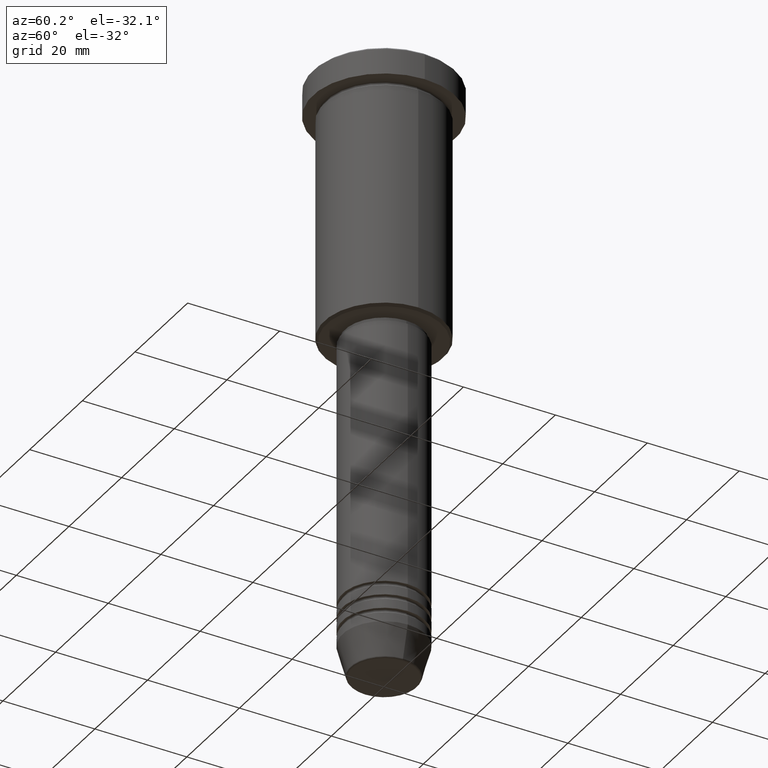
[diagram: clean part render]
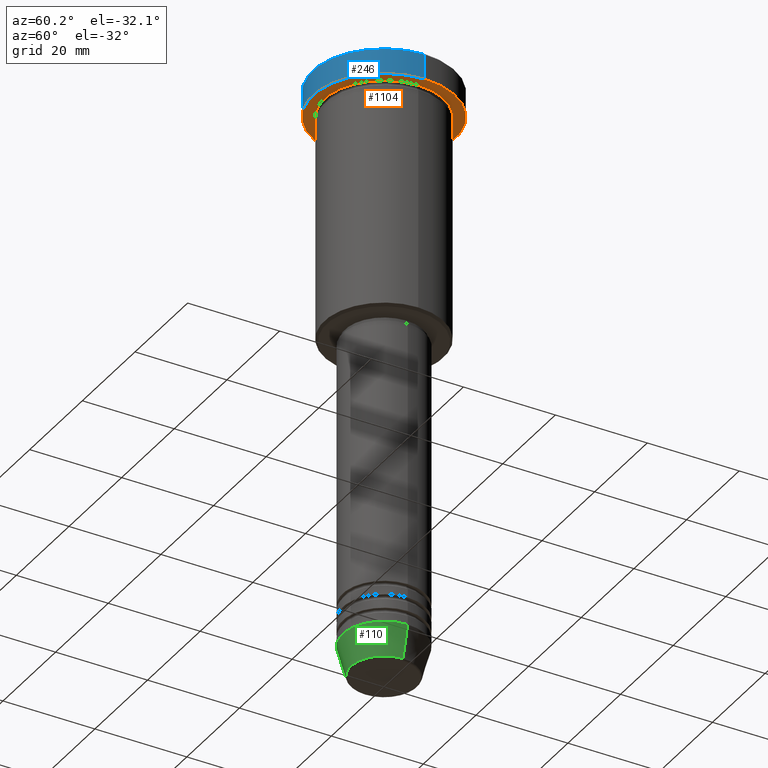
[diagram: same view with three faces highlighted in distinct colors, each labeled with its STEP entity id]
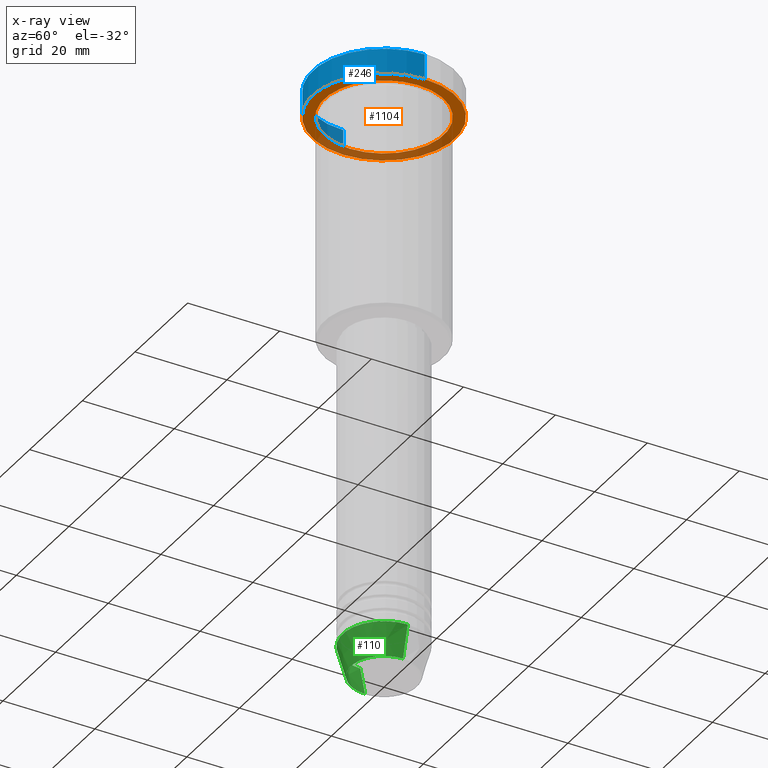
[diagram: x-ray of the same camera — body ghosted, the three highlighted faces saturated]
A machine part, auxiliary view with three faces highlighted in distinct colors.
The next image is the same camera in x-ray (body ghosted, the three faces saturated) — at least one of them is partly hidden behind the body in this view.
Their STEP definitions:

[orange] entity #1104 — the highlighted planar face has unit normal (0, 0, -1).
#147 = VERTEX_POINT ( 'NONE', #797 ) ;
#161 = EDGE_CURVE ( 'NONE', #652, #615, #906, .T. ) ;
#181 = EDGE_CURVE ( 'NONE', #1025, #147, #1079, .T. ) ;
#233 = AXIS2_PLACEMENT_3D ( 'NONE', #711, #237, #357 ) ;
#237 = DIRECTION ( 'NONE',  ( 0.000000000000000000, 0.000000000000000000, -1.000000000000000000 ) ) ;
#281 = ORIENTED_EDGE ( 'NONE', *, *, #315, .F. ) ;
#315 = EDGE_CURVE ( 'NONE', #147, #1025, #883, .T. ) ;
#326 = DIRECTION ( 'NONE',  ( 1.000000000000000000, 0.000000000000000000, 0.000000000000000000 ) ) ;
#328 = ORIENTED_EDGE ( 'NONE', *, *, #581, .T. ) ;
#340 = DIRECTION ( 'NONE',  ( -0.000000000000000000, -0.000000000000000000, 1.000000000000000000 ) ) ;
#345 = AXIS2_PLACEMENT_3D ( 'NONE', #1059, #539, #898 ) ;
#348 = CARTESIAN_POINT ( 'NONE',  ( 15.50000000000000000, 0.000000000000000000, -5.999999999999995559 ) ) ;
#353 = PLANE ( 'NONE',  #233 ) ;
#357 = DIRECTION ( 'NONE',  ( -1.000000000000000000, 0.000000000000000000, -0.000000000000000000 ) ) ;
#433 = FACE_OUTER_BOUND ( 'NONE', #835, .T. ) ;
#473 = ORIENTED_EDGE ( 'NONE', *, *, #161, .T. ) ;
#486 = CARTESIAN_POINT ( 'NONE',  ( 0.000000000000000000, 0.000000000000000000, -5.999999999999995559 ) ) ;
#539 = DIRECTION ( 'NONE',  ( -0.000000000000000000, -0.000000000000000000, 1.000000000000000000 ) ) ;
#550 = AXIS2_PLACEMENT_3D ( 'NONE', #486, #961, #326 ) ;
#581 = EDGE_CURVE ( 'NONE', #615, #652, #930, .T. ) ;
#615 = VERTEX_POINT ( 'NONE', #1080 ) ;
#652 = VERTEX_POINT ( 'NONE', #1174 ) ;
#711 = CARTESIAN_POINT ( 'NONE',  ( 0.000000000000000000, 15.50000000000000000, -5.999999999999995559 ) ) ;
#733 = CARTESIAN_POINT ( 'NONE',  ( 0.000000000000000000, 0.000000000000000000, -5.999999999999995559 ) ) ;
#797 = CARTESIAN_POINT ( 'NONE',  ( -15.50000000000000000, 1.898202538678397557E-15, -5.999999999999995559 ) ) ;
#835 = EDGE_LOOP ( 'NONE', ( #1144, #281 ) ) ;
#883 = CIRCLE ( 'NONE', #550, 15.50000000000000000 ) ;
#887 = AXIS2_PLACEMENT_3D ( 'NONE', #1075, #340, #968 ) ;
#898 = DIRECTION ( 'NONE',  ( -1.000000000000000000, 0.000000000000000000, 0.000000000000000000 ) ) ;
#906 = CIRCLE ( 'NONE', #345, 13.00000000000000000 ) ;
#930 = CIRCLE ( 'NONE', #887, 13.00000000000000000 ) ;
#940 = EDGE_LOOP ( 'NONE', ( #328, #473 ) ) ;
#961 = DIRECTION ( 'NONE',  ( -0.000000000000000000, -0.000000000000000000, 1.000000000000000000 ) ) ;
#968 = DIRECTION ( 'NONE',  ( -1.000000000000000000, 0.000000000000000000, 0.000000000000000000 ) ) ;
#971 = FACE_BOUND ( 'NONE', #940, .T. ) ;
#991 = DIRECTION ( 'NONE',  ( -0.000000000000000000, -0.000000000000000000, 1.000000000000000000 ) ) ;
#1005 = DIRECTION ( 'NONE',  ( 1.000000000000000000, 0.000000000000000000, 0.000000000000000000 ) ) ;
#1025 = VERTEX_POINT ( 'NONE', #348 ) ;
#1059 = CARTESIAN_POINT ( 'NONE',  ( 0.000000000000000000, 0.000000000000000000, -5.999999999999995559 ) ) ;
#1075 = CARTESIAN_POINT ( 'NONE',  ( 0.000000000000000000, 0.000000000000000000, -5.999999999999995559 ) ) ;
#1079 = CIRCLE ( 'NONE', #1146, 15.50000000000000000 ) ;
#1080 = CARTESIAN_POINT ( 'NONE',  ( -13.00000000000000000, 0.000000000000000000, -5.999999999999994671 ) ) ;
#1104 = ADVANCED_FACE ( 'NONE', ( #971, #433 ), #353, .T. ) ;
#1144 = ORIENTED_EDGE ( 'NONE', *, *, #181, .F. ) ;
#1146 = AXIS2_PLACEMENT_3D ( 'NONE', #733, #991, #1005 ) ;
#1174 = CARTESIAN_POINT ( 'NONE',  ( 13.00000000000000000, 1.592040838891559095E-15, -5.999999999999994671 ) ) ;

[blue] entity #246 — the highlighted cylindrical surface (partial cylindrical patch) has radius 15.5 mm, axis along (-0, -0, 1).
#96 = FACE_OUTER_BOUND ( 'NONE', #848, .T. ) ;
#115 = DIRECTION ( 'NONE',  ( 1.000000000000000000, 0.000000000000000000, 0.000000000000000000 ) ) ;
#147 = VERTEX_POINT ( 'NONE', #797 ) ;
#241 = VERTEX_POINT ( 'NONE', #547 ) ;
#246 = ADVANCED_FACE ( 'NONE', ( #96 ), #284, .T. ) ;
#284 = CYLINDRICAL_SURFACE ( 'NONE', #982, 15.50000000000000000 ) ;
#309 = CIRCLE ( 'NONE', #966, 15.50000000000000000 ) ;
#315 = EDGE_CURVE ( 'NONE', #147, #1025, #883, .T. ) ;
#326 = DIRECTION ( 'NONE',  ( 1.000000000000000000, 0.000000000000000000, 0.000000000000000000 ) ) ;
#348 = CARTESIAN_POINT ( 'NONE',  ( 15.50000000000000000, 0.000000000000000000, -5.999999999999995559 ) ) ;
#421 = LINE ( 'NONE', #778, #534 ) ;
#465 = ORIENTED_EDGE ( 'NONE', *, *, #962, .T. ) ;
#486 = CARTESIAN_POINT ( 'NONE',  ( 0.000000000000000000, 0.000000000000000000, -5.999999999999995559 ) ) ;
#523 = EDGE_CURVE ( 'NONE', #147, #241, #421, .T. ) ;
#529 = ORIENTED_EDGE ( 'NONE', *, *, #735, .T. ) ;
#534 = VECTOR ( 'NONE', #853, 1000.000000000000000 ) ;
#546 = CARTESIAN_POINT ( 'NONE',  ( 0.000000000000000000, 0.000000000000000000, -0.4999999999999709677 ) ) ;
#547 = CARTESIAN_POINT ( 'NONE',  ( -15.50000000000000000, 1.898202538678397557E-15, -0.4999999999999709677 ) ) ;
#550 = AXIS2_PLACEMENT_3D ( 'NONE', #486, #961, #326 ) ;
#555 = CARTESIAN_POINT ( 'NONE',  ( 0.000000000000000000, 0.000000000000000000, 0.000000000000000000 ) ) ;
#578 = CARTESIAN_POINT ( 'NONE',  ( 15.50000000000000000, 0.000000000000000000, 0.000000000000000000 ) ) ;
#605 = VERTEX_POINT ( 'NONE', #789 ) ;
#651 = DIRECTION ( 'NONE',  ( -0.000000000000000000, -0.000000000000000000, 1.000000000000000000 ) ) ;
#654 = DIRECTION ( 'NONE',  ( 0.000000000000000000, 0.000000000000000000, -1.000000000000000000 ) ) ;
#735 = EDGE_CURVE ( 'NONE', #605, #241, #309, .T. ) ;
#740 = VECTOR ( 'NONE', #951, 1000.000000000000000 ) ;
#778 = CARTESIAN_POINT ( 'NONE',  ( -15.50000000000000000, 1.898202538678397557E-15, 0.000000000000000000 ) ) ;
#789 = CARTESIAN_POINT ( 'NONE',  ( 15.50000000000000000, 0.000000000000000000, -0.4999999999999709677 ) ) ;
#797 = CARTESIAN_POINT ( 'NONE',  ( -15.50000000000000000, 1.898202538678397557E-15, -5.999999999999995559 ) ) ;
#821 = DIRECTION ( 'NONE',  ( 1.000000000000000000, 0.000000000000000000, 0.000000000000000000 ) ) ;
#848 = EDGE_LOOP ( 'NONE', ( #1089, #928, #465, #529 ) ) ;
#853 = DIRECTION ( 'NONE',  ( -0.000000000000000000, -0.000000000000000000, 1.000000000000000000 ) ) ;
#883 = CIRCLE ( 'NONE', #550, 15.50000000000000000 ) ;
#928 = ORIENTED_EDGE ( 'NONE', *, *, #315, .T. ) ;
#951 = DIRECTION ( 'NONE',  ( -0.000000000000000000, -0.000000000000000000, 1.000000000000000000 ) ) ;
#961 = DIRECTION ( 'NONE',  ( -0.000000000000000000, -0.000000000000000000, 1.000000000000000000 ) ) ;
#962 = EDGE_CURVE ( 'NONE', #1025, #605, #1036, .T. ) ;
#966 = AXIS2_PLACEMENT_3D ( 'NONE', #546, #654, #821 ) ;
#982 = AXIS2_PLACEMENT_3D ( 'NONE', #555, #651, #115 ) ;
#1025 = VERTEX_POINT ( 'NONE', #348 ) ;
#1036 = LINE ( 'NONE', #578, #740 ) ;
#1089 = ORIENTED_EDGE ( 'NONE', *, *, #523, .F. ) ;

[green] entity #110 — the highlighted conical surface has half-angle 15 deg.
#16 = ORIENTED_EDGE ( 'NONE', *, *, #207, .F. ) ;
#59 = CARTESIAN_POINT ( 'NONE',  ( 7.223655072137188604, 0.000000000000000000, -130.6294095225512706 ) ) ;
#69 = AXIS2_PLACEMENT_3D ( 'NONE', #1108, #461, #662 ) ;
#100 = EDGE_CURVE ( 'NONE', #567, #220, #452, .T. ) ;
#110 = ADVANCED_FACE ( 'NONE', ( #628 ), #1040, .T. ) ;
#206 = ORIENTED_EDGE ( 'NONE', *, *, #1078, .T. ) ;
#207 = EDGE_CURVE ( 'NONE', #306, #220, #498, .T. ) ;
#220 = VERTEX_POINT ( 'NONE', #914 ) ;
#251 = DIRECTION ( 'NONE',  ( 1.000000000000000000, 0.000000000000000000, 0.000000000000000000 ) ) ;
#306 = VERTEX_POINT ( 'NONE', #1090 ) ;
#310 = CIRCLE ( 'NONE', #1127, 7.223655072137188604 ) ;
#356 = CARTESIAN_POINT ( 'NONE',  ( 9.000000000000000000, 0.000000000000000000, -124.0000000000000000 ) ) ;
#452 = LINE ( 'NONE', #356, #734 ) ;
#461 = DIRECTION ( 'NONE',  ( -0.000000000000000000, -0.000000000000000000, 1.000000000000000000 ) ) ;
#462 = ORIENTED_EDGE ( 'NONE', *, *, #495, .F. ) ;
#495 = EDGE_CURVE ( 'NONE', #1095, #306, #585, .T. ) ;
#498 = CIRCLE ( 'NONE', #69, 9.000000000000000000 ) ;
#520 = EDGE_LOOP ( 'NONE', ( #462, #206, #556, #16 ) ) ;
#528 = CARTESIAN_POINT ( 'NONE',  ( -7.223655072137189492, 9.934123627281765110E-16, -130.6294095225512706 ) ) ;
#556 = ORIENTED_EDGE ( 'NONE', *, *, #100, .T. ) ;
#567 = VERTEX_POINT ( 'NONE', #59 ) ;
#585 = LINE ( 'NONE', #1031, #704 ) ;
#628 = FACE_OUTER_BOUND ( 'NONE', #520, .T. ) ;
#662 = DIRECTION ( 'NONE',  ( 1.000000000000000000, 0.000000000000000000, 0.000000000000000000 ) ) ;
#704 = VECTOR ( 'NONE', #945, 1000.000000000000000 ) ;
#717 = DIRECTION ( 'NONE',  ( 0.2588190451025213501, 0.000000000000000000, 0.9659258262890680902 ) ) ;
#734 = VECTOR ( 'NONE', #717, 1000.000000000000000 ) ;
#807 = DIRECTION ( 'NONE',  ( -0.000000000000000000, -0.000000000000000000, 1.000000000000000000 ) ) ;
#914 = CARTESIAN_POINT ( 'NONE',  ( 9.000000000000000000, 0.000000000000000000, -124.0000000000000000 ) ) ;
#945 = DIRECTION ( 'NONE',  ( -0.2588190451025213501, 3.169619151431772337E-17, 0.9659258262890680902 ) ) ;
#948 = AXIS2_PLACEMENT_3D ( 'NONE', #1082, #985, #970 ) ;
#970 = DIRECTION ( 'NONE',  ( 1.000000000000000000, 0.000000000000000000, 0.000000000000000000 ) ) ;
#985 = DIRECTION ( 'NONE',  ( -0.000000000000000000, -0.000000000000000000, 1.000000000000000000 ) ) ;
#1031 = CARTESIAN_POINT ( 'NONE',  ( -9.000000000000000000, 1.102182119232617714E-15, -124.0000000000000000 ) ) ;
#1040 = CONICAL_SURFACE ( 'NONE', #948, 9.000000000000000000, 0.2617993877991500740 ) ;
#1060 = CARTESIAN_POINT ( 'NONE',  ( 0.000000000000000000, 0.000000000000000000, -130.6294095225512706 ) ) ;
#1078 = EDGE_CURVE ( 'NONE', #1095, #567, #310, .T. ) ;
#1082 = CARTESIAN_POINT ( 'NONE',  ( 0.000000000000000000, 0.000000000000000000, -124.0000000000000000 ) ) ;
#1090 = CARTESIAN_POINT ( 'NONE',  ( -9.000000000000000000, 1.102182119232617714E-15, -124.0000000000000000 ) ) ;
#1095 = VERTEX_POINT ( 'NONE', #528 ) ;
#1108 = CARTESIAN_POINT ( 'NONE',  ( 0.000000000000000000, 0.000000000000000000, -124.0000000000000000 ) ) ;
#1127 = AXIS2_PLACEMENT_3D ( 'NONE', #1060, #807, #251 ) ;